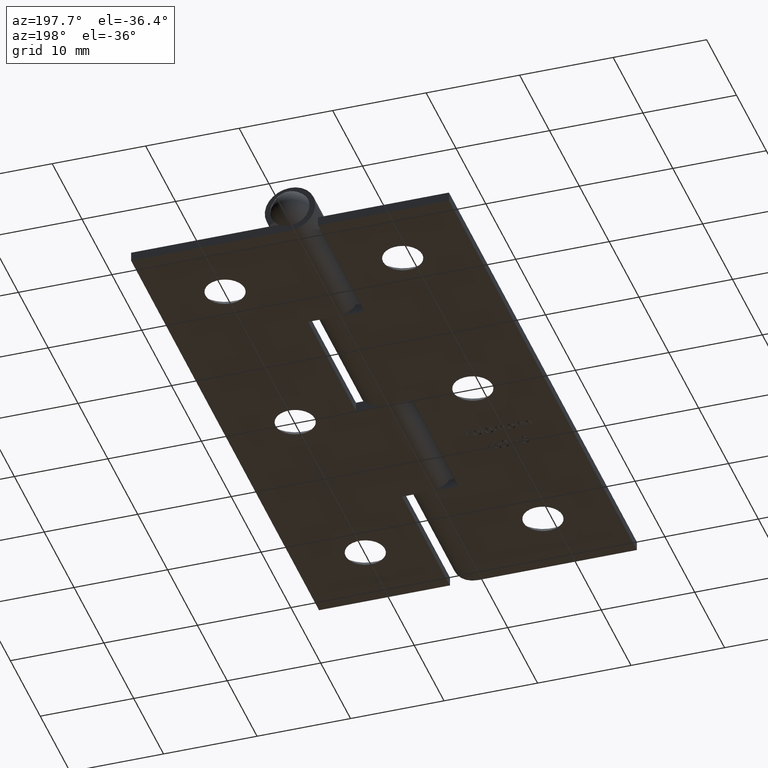
[diagram: clean part render]
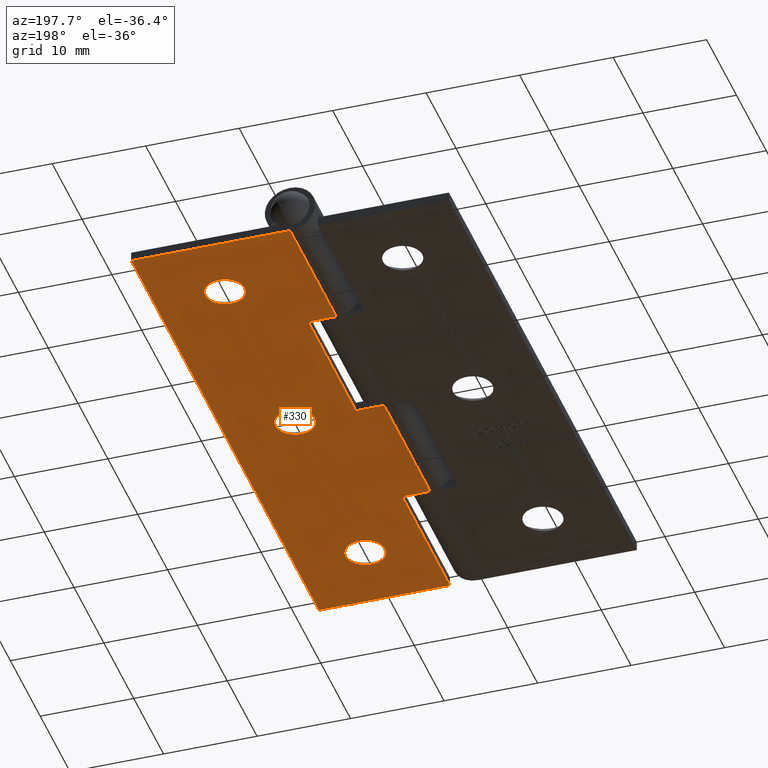
[diagram: same view with one face highlighted and labeled with its STEP entity id]
A machine part, auxiliary view. The second image highlights one B-rep face of the part: STEP entity #330.
In plain terms, the highlighted planar face has unit normal (0, 0, 1).
Its self-contained STEP definition (entity closure, byte-faithful):
#203 = EDGE_CURVE ( 'NONE', #4837, #4837, #2866, .T. ) ;
#219 = CARTESIAN_POINT ( 'NONE',  ( -2.700000000000000178, -16.00000000000000000, 3.512815038853034366E-16 ) ) ;
#269 = LINE ( 'NONE', #1325, #2257 ) ;
#272 = EDGE_CURVE ( 'NONE', #9687, #2001, #5282, .T. ) ;
#304 = FACE_OUTER_BOUND ( 'NONE', #3552, .T. ) ;
#308 = CARTESIAN_POINT ( 'NONE',  ( -12.20000000000000284, -23.50000000000000000, 0.000000000000000000 ) ) ;
#330 = ADVANCED_FACE ( 'NONE', ( #7244, #1299, #10754, #304 ), #8802, .F. ) ;
#368 = DIRECTION ( 'NONE',  ( 1.000000000000000000, -0.000000000000000000, -1.301042606982605321E-16 ) ) ;
#543 = VERTEX_POINT ( 'NONE', #1251 ) ;
#751 = CARTESIAN_POINT ( 'NONE',  ( -2.700000000000000178, 31.50000000000000000, 0.000000000000000000 ) ) ;
#821 = EDGE_CURVE ( 'NONE', #6705, #7439, #7952, .T. ) ;
#957 = AXIS2_PLACEMENT_3D ( 'NONE', #7541, #9262, #4806 ) ;
#1079 = ORIENTED_EDGE ( 'NONE', *, *, #7077, .F. ) ;
#1122 = CARTESIAN_POINT ( 'NONE',  ( -2.700000000000000178, -31.50000000000000000, 0.000000000000000000 ) ) ;
#1190 = CARTESIAN_POINT ( 'NONE',  ( -2.700000000000000178, 31.50000000000000000, 0.000000000000000000 ) ) ;
#1251 = CARTESIAN_POINT ( 'NONE',  ( -10.10000000000000142, 0.000000000000000000, 0.000000000000000000 ) ) ;
#1293 = CARTESIAN_POINT ( 'NONE',  ( -10.10000000000000142, -23.50000000000000000, 0.000000000000000000 ) ) ;
#1299 = FACE_BOUND ( 'NONE', #4322, .T. ) ;
#1325 = CARTESIAN_POINT ( 'NONE',  ( -5.700000000000002842, -16.00000000000000000, 7.415942859800854273E-16 ) ) ;
#1467 = LINE ( 'NONE', #1190, #3186 ) ;
#1482 = DIRECTION ( 'NONE',  ( 1.275531967630005245E-16, -0.000000000000000000, 1.000000000000000000 ) ) ;
#1609 = AXIS2_PLACEMENT_3D ( 'NONE', #6839, #11338, #4900 ) ;
#2001 = VERTEX_POINT ( 'NONE', #7087 ) ;
#2110 = CARTESIAN_POINT ( 'NONE',  ( -5.700000000000001954, 0.000000000000000000, 7.415942859800853287E-16 ) ) ;
#2257 = VECTOR ( 'NONE', #7585, 1000.000000000000000 ) ;
#2274 = LINE ( 'NONE', #3273, #6546 ) ;
#2462 = LINE ( 'NONE', #7584, #3919 ) ;
#2466 = DIRECTION ( 'NONE',  ( -1.000000000000000000, 0.000000000000000000, 1.275531967630005245E-16 ) ) ;
#2468 = VERTEX_POINT ( 'NONE', #2913 ) ;
#2716 = EDGE_CURVE ( 'NONE', #8928, #7057, #269, .T. ) ;
#2866 = CIRCLE ( 'NONE', #1609, 2.099999999999999645 ) ;
#2879 = VERTEX_POINT ( 'NONE', #219 ) ;
#2913 = CARTESIAN_POINT ( 'NONE',  ( -19.70000000000000284, 31.50000000000000000, 2.168404344971008868E-15 ) ) ;
#2980 = EDGE_CURVE ( 'NONE', #2879, #9687, #9874, .T. ) ;
#2998 = AXIS2_PLACEMENT_3D ( 'NONE', #9693, #1482, #4175 ) ;
#3072 = ORIENTED_EDGE ( 'NONE', *, *, #2716, .F. ) ;
#3186 = VECTOR ( 'NONE', #7569, 1000.000000000000000 ) ;
#3273 = CARTESIAN_POINT ( 'NONE',  ( -19.70000000000000284, 31.50000000000000000, 2.168404344971008868E-15 ) ) ;
#3300 = EDGE_CURVE ( 'NONE', #7439, #9288, #4700, .T. ) ;
#3552 = EDGE_LOOP ( 'NONE', ( #8147, #10393, #3072, #6515, #5137, #11227, #4221, #1079, #5882, #9364 ) ) ;
#3722 = VECTOR ( 'NONE', #6545, 1000.000000000000000 ) ;
#3919 = VECTOR ( 'NONE', #368, 1000.000000000000000 ) ;
#4015 = CIRCLE ( 'NONE', #10888, 2.100000000000000977 ) ;
#4175 = DIRECTION ( 'NONE',  ( 1.000000000000000000, 0.000000000000000000, -1.275531967630005245E-16 ) ) ;
#4221 = ORIENTED_EDGE ( 'NONE', *, *, #10388, .F. ) ;
#4247 = CARTESIAN_POINT ( 'NONE',  ( -2.700000000000000178, -31.50000000000000000, 0.000000000000000000 ) ) ;
#4258 = CARTESIAN_POINT ( 'NONE',  ( -5.700000000000002842, -16.00000000000000000, 7.415942859800854273E-16 ) ) ;
#4322 = EDGE_LOOP ( 'NONE', ( #8128 ) ) ;
#4572 = CIRCLE ( 'NONE', #957, 2.100000000000000977 ) ;
#4700 = LINE ( 'NONE', #7361, #4976 ) ;
#4806 = DIRECTION ( 'NONE',  ( 1.000000000000000000, 0.000000000000000000, 0.000000000000000000 ) ) ;
#4837 = VERTEX_POINT ( 'NONE', #7624 ) ;
#4840 = VECTOR ( 'NONE', #9003, 1000.000000000000000 ) ;
#4900 = DIRECTION ( 'NONE',  ( 1.000000000000000000, 0.000000000000000000, 0.000000000000000000 ) ) ;
#4976 = VECTOR ( 'NONE', #5596, 1000.000000000000000 ) ;
#5137 = ORIENTED_EDGE ( 'NONE', *, *, #2980, .T. ) ;
#5231 = DIRECTION ( 'NONE',  ( -0.000000000000000000, -1.000000000000000000, -0.000000000000000000 ) ) ;
#5282 = LINE ( 'NONE', #4247, #6556 ) ;
#5288 = DIRECTION ( 'NONE',  ( -1.000000000000000000, 0.000000000000000000, 1.301042606982605321E-16 ) ) ;
#5596 = DIRECTION ( 'NONE',  ( 5.421010862427522170E-17, 1.000000000000000000, -6.018531076210112041E-33 ) ) ;
#5807 = EDGE_CURVE ( 'NONE', #2879, #8928, #11121, .T. ) ;
#5842 = VERTEX_POINT ( 'NONE', #9961 ) ;
#5882 = ORIENTED_EDGE ( 'NONE', *, *, #3300, .F. ) ;
#5936 = CARTESIAN_POINT ( 'NONE',  ( -5.700000000000002842, 15.50000000000000000, 7.415942859800854273E-16 ) ) ;
#6186 = ORIENTED_EDGE ( 'NONE', *, *, #9575, .T. ) ;
#6286 = EDGE_LOOP ( 'NONE', ( #10998 ) ) ;
#6343 = CARTESIAN_POINT ( 'NONE',  ( -2.700000000000000178, 31.50000000000000000, 0.000000000000000000 ) ) ;
#6375 = CARTESIAN_POINT ( 'NONE',  ( -2.700000000000000178, 15.50000000000000000, 3.512815038853034366E-16 ) ) ;
#6515 = ORIENTED_EDGE ( 'NONE', *, *, #5807, .F. ) ;
#6545 = DIRECTION ( 'NONE',  ( -1.000000000000000000, 0.000000000000000000, 1.301042606982605321E-16 ) ) ;
#6546 = VECTOR ( 'NONE', #5231, 1000.000000000000000 ) ;
#6556 = VECTOR ( 'NONE', #2466, 1000.000000000000000 ) ;
#6705 = VERTEX_POINT ( 'NONE', #6375 ) ;
#6791 = VERTEX_POINT ( 'NONE', #1293 ) ;
#6839 = CARTESIAN_POINT ( 'NONE',  ( -12.20000000000000817, 23.50000000000000000, 0.000000000000000000 ) ) ;
#7041 = VECTOR ( 'NONE', #5288, 1000.000000000000000 ) ;
#7057 = VERTEX_POINT ( 'NONE', #2110 ) ;
#7077 = EDGE_CURVE ( 'NONE', #9288, #2468, #7586, .T. ) ;
#7087 = CARTESIAN_POINT ( 'NONE',  ( -19.70000000000000284, -31.50000000000000000, 2.168404344971008868E-15 ) ) ;
#7244 = FACE_BOUND ( 'NONE', #9968, .T. ) ;
#7361 = CARTESIAN_POINT ( 'NONE',  ( -5.700000000000001954, 31.50000000000000000, 7.415942859800853287E-16 ) ) ;
#7439 = VERTEX_POINT ( 'NONE', #5936 ) ;
#7541 = CARTESIAN_POINT ( 'NONE',  ( -12.20000000000000284, 0.000000000000000000, 0.000000000000000000 ) ) ;
#7569 = DIRECTION ( 'NONE',  ( -0.000000000000000000, -1.000000000000000000, -0.000000000000000000 ) ) ;
#7584 = CARTESIAN_POINT ( 'NONE',  ( 6.099999999999998757, 0.000000000000000000, -7.936359902593890485E-16 ) ) ;
#7585 = DIRECTION ( 'NONE',  ( 5.421010862427522170E-17, 1.000000000000000000, -6.018531076210112041E-33 ) ) ;
#7586 = LINE ( 'NONE', #751, #8572 ) ;
#7624 = CARTESIAN_POINT ( 'NONE',  ( -10.10000000000000853, 23.50000000000000000, 0.000000000000000000 ) ) ;
#7770 = EDGE_CURVE ( 'NONE', #6705, #5842, #1467, .T. ) ;
#7952 = LINE ( 'NONE', #10079, #3722 ) ;
#8128 = ORIENTED_EDGE ( 'NONE', *, *, #10302, .T. ) ;
#8147 = ORIENTED_EDGE ( 'NONE', *, *, #7770, .T. ) ;
#8190 = EDGE_CURVE ( 'NONE', #7057, #5842, #2462, .T. ) ;
#8355 = DIRECTION ( 'NONE',  ( 0.000000000000000000, 0.000000000000000000, 1.000000000000000000 ) ) ;
#8572 = VECTOR ( 'NONE', #10783, 1000.000000000000000 ) ;
#8802 = PLANE ( 'NONE',  #2998 ) ;
#8928 = VERTEX_POINT ( 'NONE', #4258 ) ;
#9003 = DIRECTION ( 'NONE',  ( -0.000000000000000000, -1.000000000000000000, -0.000000000000000000 ) ) ;
#9262 = DIRECTION ( 'NONE',  ( 0.000000000000000000, 0.000000000000000000, 1.000000000000000000 ) ) ;
#9288 = VERTEX_POINT ( 'NONE', #11495 ) ;
#9364 = ORIENTED_EDGE ( 'NONE', *, *, #821, .F. ) ;
#9575 = EDGE_CURVE ( 'NONE', #543, #543, #4572, .T. ) ;
#9687 = VERTEX_POINT ( 'NONE', #1122 ) ;
#9693 = CARTESIAN_POINT ( 'NONE',  ( -2.700000000000000178, 31.50000000000000000, 0.000000000000000000 ) ) ;
#9759 = CARTESIAN_POINT ( 'NONE',  ( 6.099999999999998757, -16.00000000000000000, -7.936359902593890485E-16 ) ) ;
#9874 = LINE ( 'NONE', #6343, #4840 ) ;
#9961 = CARTESIAN_POINT ( 'NONE',  ( -2.700000000000000178, 0.000000000000000000, 3.512815038853034366E-16 ) ) ;
#9968 = EDGE_LOOP ( 'NONE', ( #6186 ) ) ;
#10079 = CARTESIAN_POINT ( 'NONE',  ( 6.099999999999998757, 15.50000000000000000, -7.936359902593890485E-16 ) ) ;
#10302 = EDGE_CURVE ( 'NONE', #6791, #6791, #4015, .T. ) ;
#10388 = EDGE_CURVE ( 'NONE', #2468, #2001, #2274, .T. ) ;
#10393 = ORIENTED_EDGE ( 'NONE', *, *, #8190, .F. ) ;
#10754 = FACE_BOUND ( 'NONE', #6286, .T. ) ;
#10783 = DIRECTION ( 'NONE',  ( -1.000000000000000000, 0.000000000000000000, 1.275531967630005245E-16 ) ) ;
#10888 = AXIS2_PLACEMENT_3D ( 'NONE', #308, #8355, #11089 ) ;
#10998 = ORIENTED_EDGE ( 'NONE', *, *, #203, .T. ) ;
#11089 = DIRECTION ( 'NONE',  ( 1.000000000000000000, 0.000000000000000000, 0.000000000000000000 ) ) ;
#11121 = LINE ( 'NONE', #9759, #7041 ) ;
#11227 = ORIENTED_EDGE ( 'NONE', *, *, #272, .T. ) ;
#11338 = DIRECTION ( 'NONE',  ( 0.000000000000000000, 0.000000000000000000, 1.000000000000000000 ) ) ;
#11495 = CARTESIAN_POINT ( 'NONE',  ( -5.700000000000001954, 31.50000000000000000, 3.826595902890017709E-16 ) ) ;